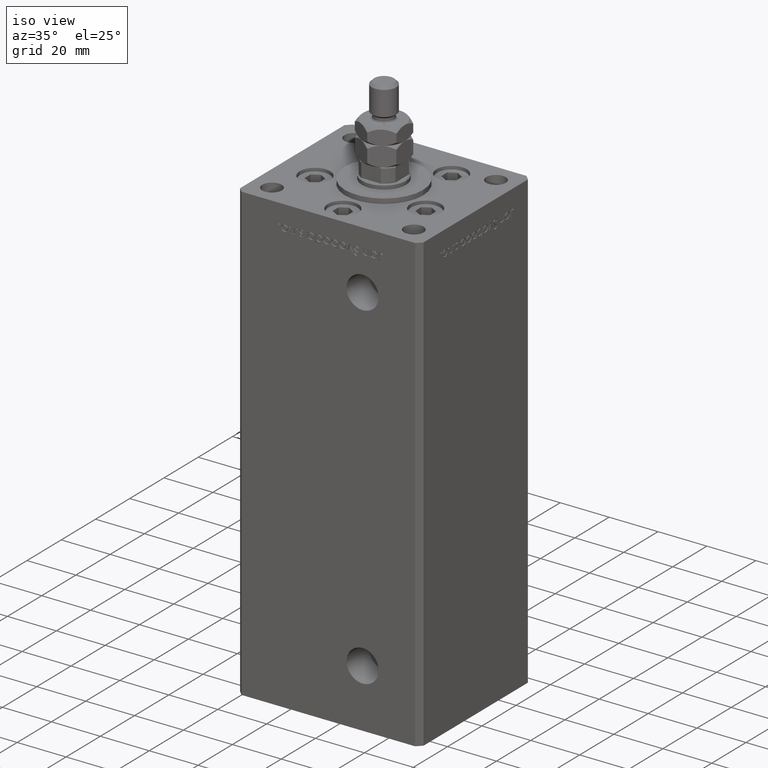
[diagram: clean part render]
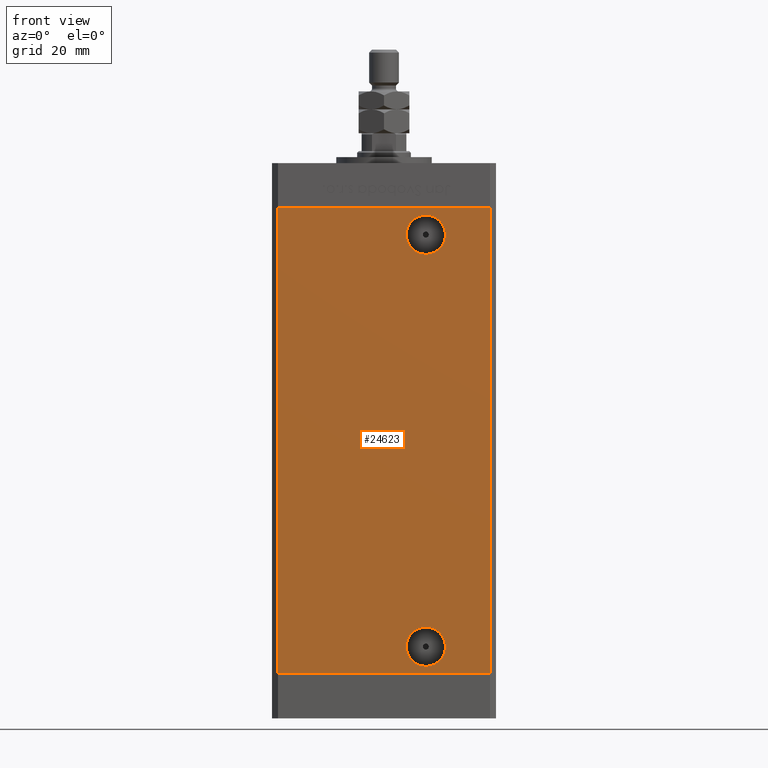
[diagram: tour spotlight — one face highlighted and labeled with its STEP entity id]
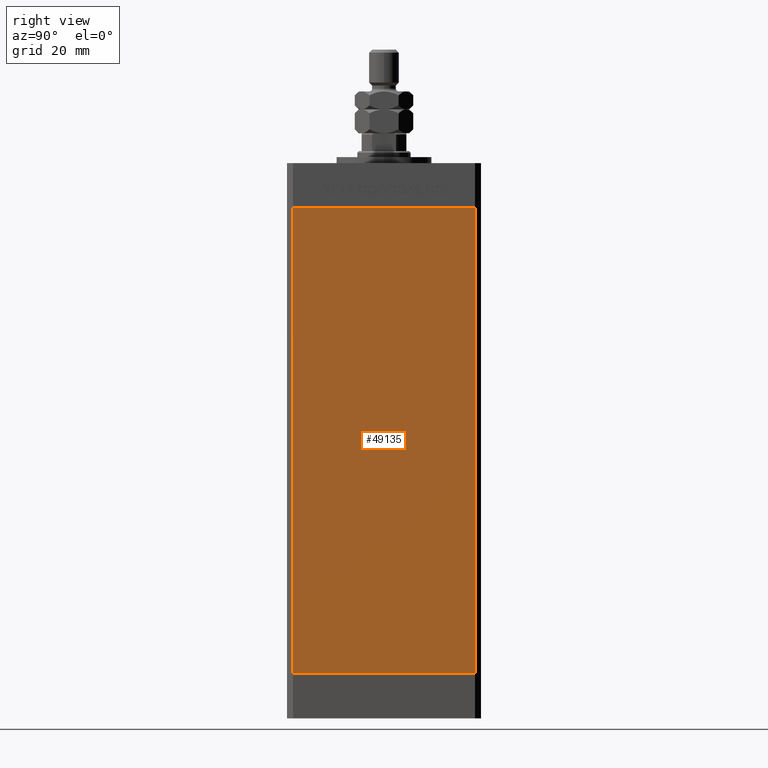
[diagram: tour spotlight — one face highlighted and labeled with its STEP entity id]
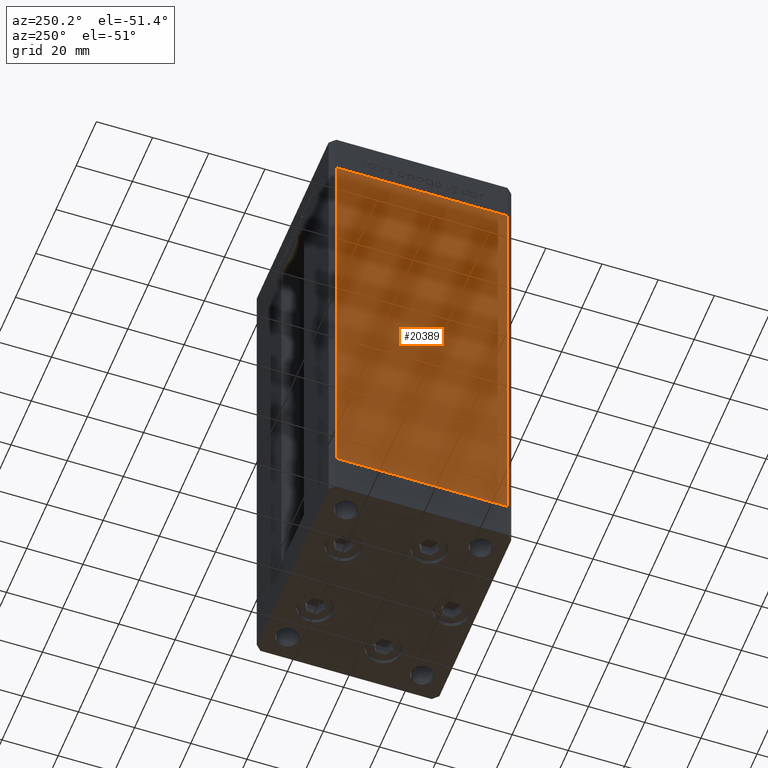
[diagram: tour spotlight — one face highlighted and labeled with its STEP entity id]
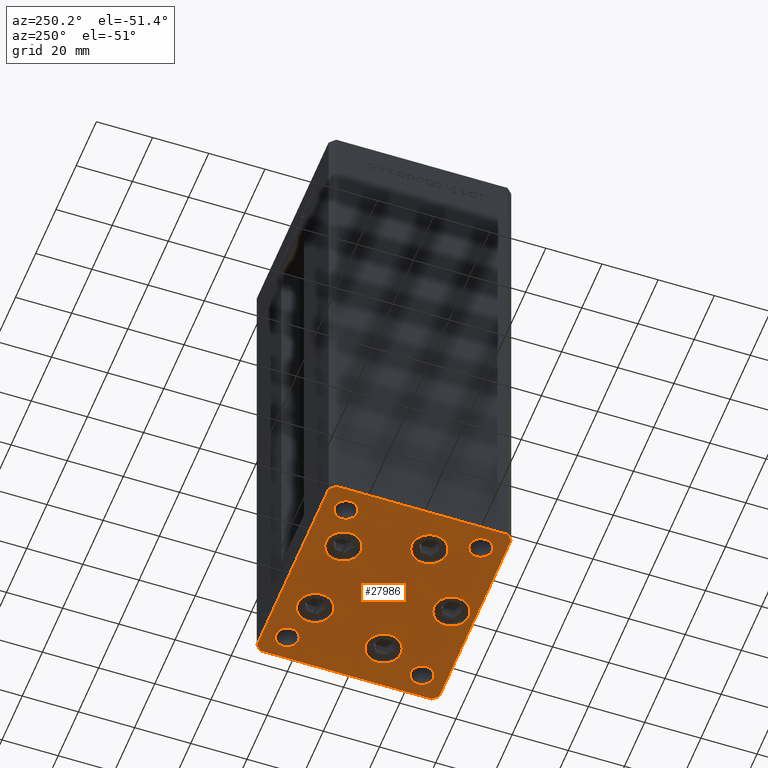
[diagram: tour spotlight — one face highlighted and labeled with its STEP entity id]
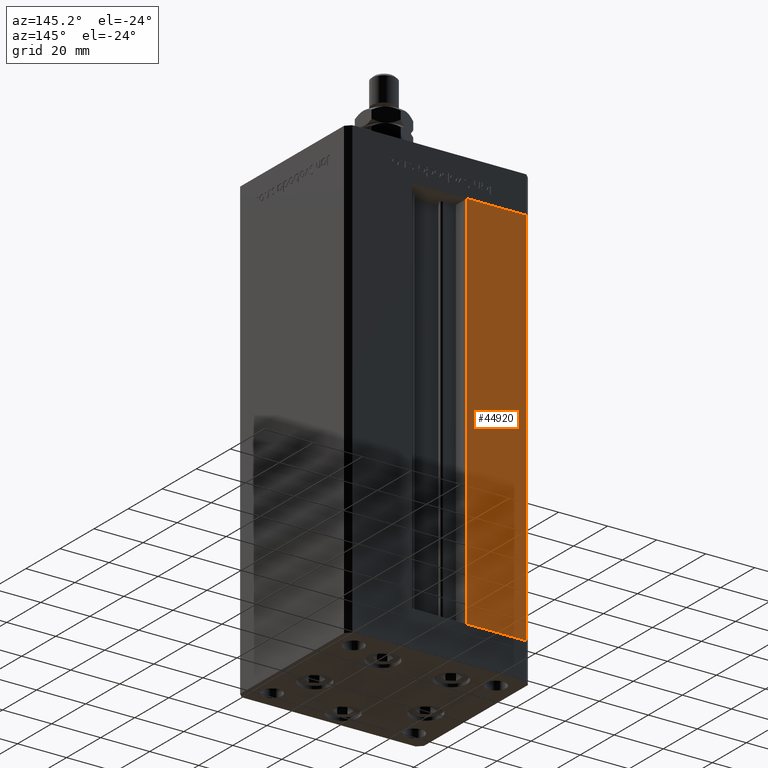
[diagram: tour spotlight — one face highlighted and labeled with its STEP entity id]
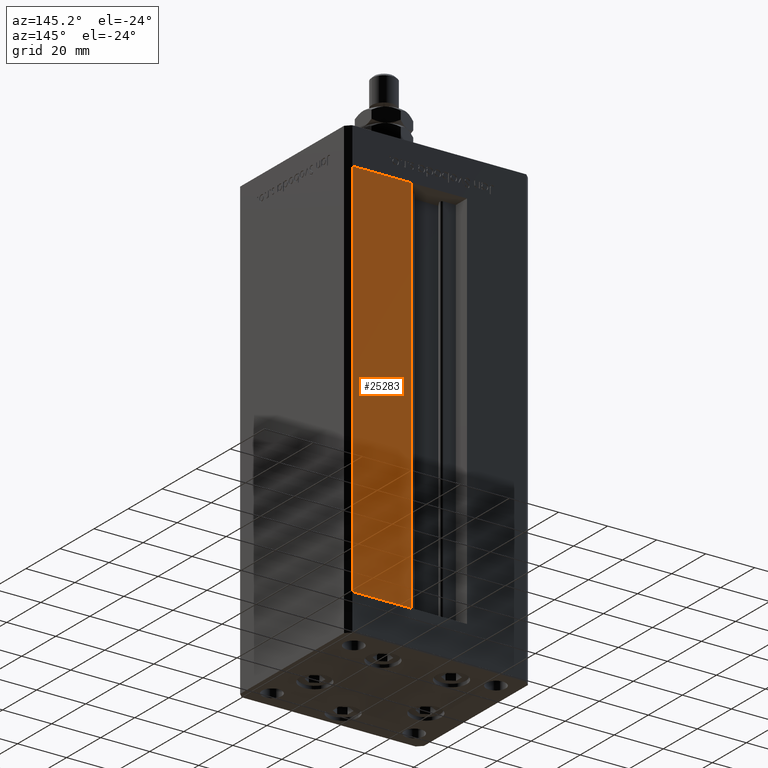
[diagram: tour spotlight — one face highlighted and labeled with its STEP entity id]
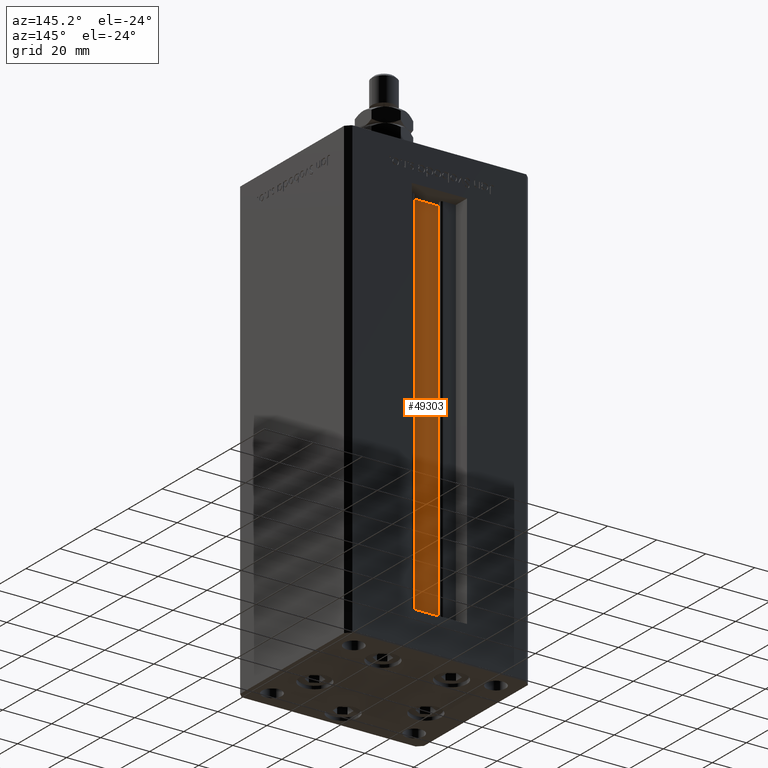
[diagram: tour spotlight — one face highlighted and labeled with its STEP entity id]
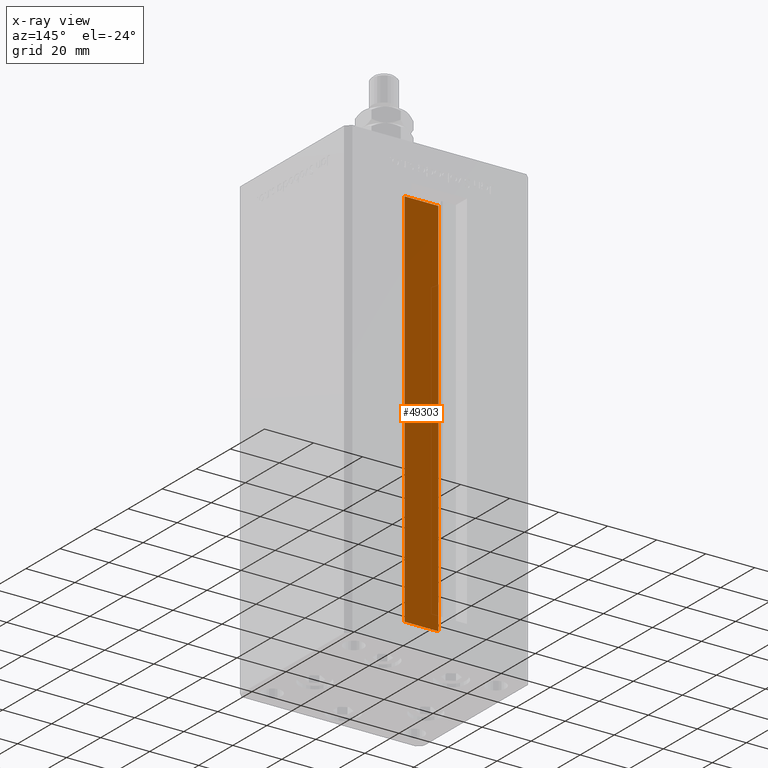
[diagram: x-ray of the same camera — body ghosted, this tour face saturated]
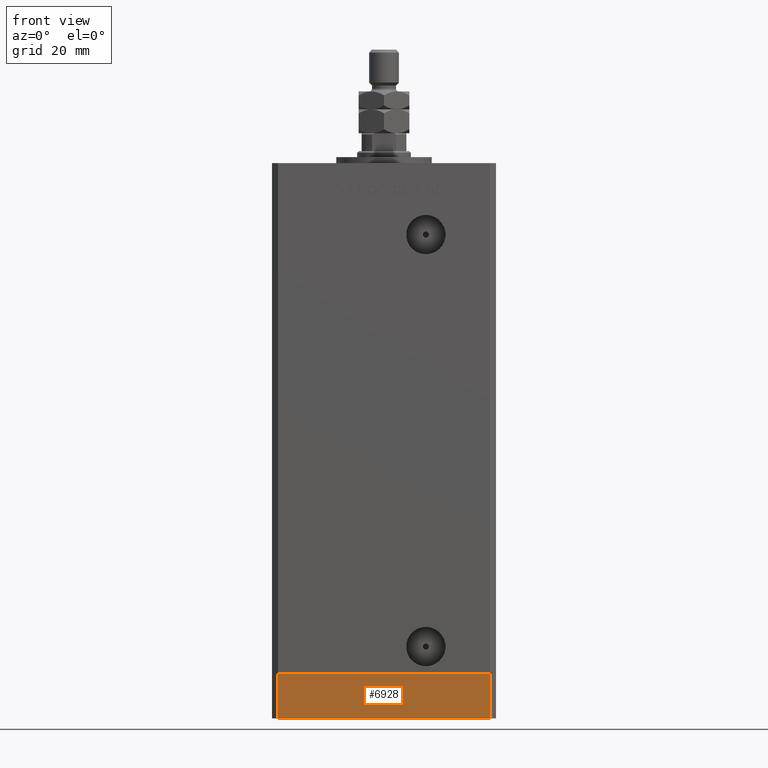
[diagram: tour spotlight — one face highlighted and labeled with its STEP entity id]
A machine part: a face-by-face anatomy tour. The part has 1232 B-rep faces; the first image is the clean iso view, then the 8 largest visible faces are spotlighted one at a time (largest first), each with its STEP entity span.

Face 1 — front view, entity #24623. In plain terms, the highlighted planar face has unit normal (0, 1, 0).
Definition (entity closure, byte-faithful):
#1510 = ORIENTED_EDGE ( 'NONE', *, *, #1729, .T. ) ;
#1599 = CARTESIAN_POINT ( 'NONE',  ( 13.99999999999997513, -32.50000000000000000, 140.4200000000000159 ) ) ;
#1729 = EDGE_CURVE ( 'NONE', #53725, #41376, #13788, .T. ) ;
#2037 = EDGE_CURVE ( 'NONE', #16664, #44804, #14907, .T. ) ;
#2448 = DIRECTION ( 'NONE',  ( 1.000000000000000000, 0.000000000000000000, 0.000000000000000000 ) ) ;
#2516 = CARTESIAN_POINT ( 'NONE',  ( 13.99999999999999112, -32.50000000000000000, 9.000000000000007105 ) ) ;
#4055 = CARTESIAN_POINT ( 'NONE',  ( 13.99999999999997513, -32.50000000000000000, 147.0000000000000284 ) ) ;
#4564 = DIRECTION ( 'NONE',  ( 0.000000000000000000, -1.000000000000000000, 0.000000000000000000 ) ) ;
#5236 = EDGE_LOOP ( 'NONE', ( #14150, #53122, #50766, #28044 ) ) ;
#7395 = FACE_BOUND ( 'NONE', #35644, .T. ) ;
#8204 = DIRECTION ( 'NONE',  ( 0.000000000000000000, -0.000000000000000000, 1.000000000000000000 ) ) ;
#9405 = CARTESIAN_POINT ( 'NONE',  ( 13.99999999999999112, -32.50000000000000000, 2.420000000000009699 ) ) ;
#10301 = VECTOR ( 'NONE', #51677, 1000.000000000000000 ) ;
#11352 = CARTESIAN_POINT ( 'NONE',  ( 35.49999999999999289, -32.50000000000000000, 156.0000000000000000 ) ) ;
#11443 = VERTEX_POINT ( 'NONE', #33886 ) ;
#12280 = CARTESIAN_POINT ( 'NONE',  ( -35.49999999999999289, -32.50000000000000000, 156.0000000000000000 ) ) ;
#13788 = CIRCLE ( 'NONE', #51980, 6.580000000000002736 ) ;
#14150 = ORIENTED_EDGE ( 'NONE', *, *, #33343, .T. ) ;
#14907 = LINE ( 'NONE', #27678, #49432 ) ;
#14947 = VERTEX_POINT ( 'NONE', #40804 ) ;
#15100 = ORIENTED_EDGE ( 'NONE', *, *, #44855, .F. ) ;
#16664 = VERTEX_POINT ( 'NONE', #48062 ) ;
#16863 = CIRCLE ( 'NONE', #53305, 6.580000000000002736 ) ;
#19063 = CARTESIAN_POINT ( 'NONE',  ( -35.49999999999999289, -32.50000000000000000, 0.000000000000000000 ) ) ;
#19911 = PLANE ( 'NONE',  #35920 ) ;
#20131 = CARTESIAN_POINT ( 'NONE',  ( 35.49999999999999289, -32.50000000000000000, 156.0000000000000000 ) ) ;
#21053 = AXIS2_PLACEMENT_3D ( 'NONE', #41822, #4564, #33408 ) ;
#21723 = EDGE_CURVE ( 'NONE', #36996, #14947, #35105, .T. ) ;
#22457 = VECTOR ( 'NONE', #27932, 1000.000000000000000 ) ;
#23214 = DIRECTION ( 'NONE',  ( 0.000000000000000000, 0.000000000000000000, -1.000000000000000000 ) ) ;
#24623 = ADVANCED_FACE ( 'NONE', ( #24793, #48970, #7395 ), #19911, .F. ) ;
#24743 = DIRECTION ( 'NONE',  ( 0.000000000000000000, 0.000000000000000000, -1.000000000000000000 ) ) ;
#24793 = FACE_BOUND ( 'NONE', #41302, .T. ) ;
#27280 = DIRECTION ( 'NONE',  ( 0.000000000000000000, -1.000000000000000000, 0.000000000000000000 ) ) ;
#27678 = CARTESIAN_POINT ( 'NONE',  ( -35.49999999999999289, -32.50000000000000000, 156.0000000000000000 ) ) ;
#27698 = VERTEX_POINT ( 'NONE', #20131 ) ;
#27932 = DIRECTION ( 'NONE',  ( -0.000000000000000000, -0.000000000000000000, -1.000000000000000000 ) ) ;
#28044 = ORIENTED_EDGE ( 'NONE', *, *, #2037, .T. ) ;
#31760 = DIRECTION ( 'NONE',  ( -0.000000000000000000, -0.000000000000000000, -1.000000000000000000 ) ) ;
#33343 = EDGE_CURVE ( 'NONE', #44804, #11443, #51915, .T. ) ;
#33408 = DIRECTION ( 'NONE',  ( 0.000000000000000000, 0.000000000000000000, -1.000000000000000000 ) ) ;
#33886 = CARTESIAN_POINT ( 'NONE',  ( 35.49999999999999289, -32.50000000000000000, 0.000000000000000000 ) ) ;
#35105 = CIRCLE ( 'NONE', #39453, 6.579999999999998295 ) ;
#35353 = CARTESIAN_POINT ( 'NONE',  ( 13.99999999999997513, -32.50000000000000000, 153.5800000000000125 ) ) ;
#35644 = EDGE_LOOP ( 'NONE', ( #52647, #1510 ) ) ;
#35920 = AXIS2_PLACEMENT_3D ( 'NONE', #12280, #48697, #8204 ) ;
#36474 = CARTESIAN_POINT ( 'NONE',  ( 13.99999999999997513, -32.50000000000000000, 147.0000000000000284 ) ) ;
#36832 = EDGE_CURVE ( 'NONE', #27698, #11443, #44514, .T. ) ;
#36996 = VERTEX_POINT ( 'NONE', #9405 ) ;
#37526 = CIRCLE ( 'NONE', #21053, 6.579999999999998295 ) ;
#37990 = EDGE_CURVE ( 'NONE', #16664, #27698, #48148, .T. ) ;
#39453 = AXIS2_PLACEMENT_3D ( 'NONE', #2516, #27280, #23214 ) ;
#40017 = DIRECTION ( 'NONE',  ( -0.000000000000000000, 1.000000000000000000, -0.000000000000000000 ) ) ;
#40804 = CARTESIAN_POINT ( 'NONE',  ( 13.99999999999999112, -32.50000000000000000, 15.58000000000000718 ) ) ;
#41302 = EDGE_LOOP ( 'NONE', ( #41517, #15100 ) ) ;
#41376 = VERTEX_POINT ( 'NONE', #1599 ) ;
#41517 = ORIENTED_EDGE ( 'NONE', *, *, #21723, .F. ) ;
#41822 = CARTESIAN_POINT ( 'NONE',  ( 13.99999999999999112, -32.50000000000000000, 9.000000000000007105 ) ) ;
#42088 = CARTESIAN_POINT ( 'NONE',  ( -35.49999999999999289, -32.50000000000000000, 0.000000000000000000 ) ) ;
#44514 = LINE ( 'NONE', #11352, #22457 ) ;
#44804 = VERTEX_POINT ( 'NONE', #42088 ) ;
#44855 = EDGE_CURVE ( 'NONE', #14947, #36996, #37526, .T. ) ;
#45903 = DIRECTION ( 'NONE',  ( -0.000000000000000000, 1.000000000000000000, -0.000000000000000000 ) ) ;
#47878 = CARTESIAN_POINT ( 'NONE',  ( -35.49999999999999289, -32.50000000000000000, 156.0000000000000000 ) ) ;
#48062 = CARTESIAN_POINT ( 'NONE',  ( -35.49999999999999289, -32.50000000000000000, 156.0000000000000000 ) ) ;
#48148 = LINE ( 'NONE', #47878, #10301 ) ;
#48697 = DIRECTION ( 'NONE',  ( 0.000000000000000000, 1.000000000000000000, 0.000000000000000000 ) ) ;
#48970 = FACE_OUTER_BOUND ( 'NONE', #5236, .T. ) ;
#49432 = VECTOR ( 'NONE', #31760, 1000.000000000000000 ) ;
#49804 = EDGE_CURVE ( 'NONE', #41376, #53725, #16863, .T. ) ;
#50766 = ORIENTED_EDGE ( 'NONE', *, *, #37990, .F. ) ;
#51677 = DIRECTION ( 'NONE',  ( 1.000000000000000000, 0.000000000000000000, 0.000000000000000000 ) ) ;
#51915 = LINE ( 'NONE', #19063, #52686 ) ;
#51980 = AXIS2_PLACEMENT_3D ( 'NONE', #4055, #45903, #24743 ) ;
#52647 = ORIENTED_EDGE ( 'NONE', *, *, #49804, .T. ) ;
#52686 = VECTOR ( 'NONE', #2448, 1000.000000000000000 ) ;
#53028 = DIRECTION ( 'NONE',  ( 0.000000000000000000, 0.000000000000000000, -1.000000000000000000 ) ) ;
#53122 = ORIENTED_EDGE ( 'NONE', *, *, #36832, .F. ) ;
#53305 = AXIS2_PLACEMENT_3D ( 'NONE', #36474, #40017, #53028 ) ;
#53725 = VERTEX_POINT ( 'NONE', #35353 ) ;

Face 2 — right view, entity #49135. In plain terms, the highlighted planar face has unit normal (1, -0, 0).
Definition (entity closure, byte-faithful):
#4048 = VECTOR ( 'NONE', #4164, 1000.000000000000000 ) ;
#4164 = DIRECTION ( 'NONE',  ( -2.275047181608927644E-16, -1.000000000000000000, 0.000000000000000000 ) ) ;
#5883 = VERTEX_POINT ( 'NONE', #37848 ) ;
#6639 = DIRECTION ( 'NONE',  ( -2.275047181608927644E-16, -1.000000000000000000, 0.000000000000000000 ) ) ;
#7255 = CARTESIAN_POINT ( 'NONE',  ( 37.50000000000000711, 30.50000000000000000, 0.000000000000000000 ) ) ;
#8850 = VERTEX_POINT ( 'NONE', #14465 ) ;
#14271 = DIRECTION ( 'NONE',  ( -0.000000000000000000, -0.000000000000000000, -1.000000000000000000 ) ) ;
#14353 = EDGE_LOOP ( 'NONE', ( #24527, #19221, #34821, #48436 ) ) ;
#14465 = CARTESIAN_POINT ( 'NONE',  ( 37.49999999999999289, -30.50000000000000000, 0.000000000000000000 ) ) ;
#14895 = VERTEX_POINT ( 'NONE', #35114 ) ;
#19221 = ORIENTED_EDGE ( 'NONE', *, *, #42950, .F. ) ;
#19765 = PLANE ( 'NONE',  #48923 ) ;
#23568 = DIRECTION ( 'NONE',  ( 2.275047181608927644E-16, 1.000000000000000000, 0.000000000000000000 ) ) ;
#24051 = CARTESIAN_POINT ( 'NONE',  ( 37.50000000000000711, 30.50000000000000000, 156.0000000000000000 ) ) ;
#24113 = FACE_OUTER_BOUND ( 'NONE', #14353, .T. ) ;
#24527 = ORIENTED_EDGE ( 'NONE', *, *, #32217, .F. ) ;
#24559 = EDGE_CURVE ( 'NONE', #14895, #8850, #51151, .T. ) ;
#31064 = DIRECTION ( 'NONE',  ( -0.000000000000000000, -0.000000000000000000, -1.000000000000000000 ) ) ;
#32217 = EDGE_CURVE ( 'NONE', #44054, #8850, #50610, .T. ) ;
#34664 = LINE ( 'NONE', #46871, #49626 ) ;
#34821 = ORIENTED_EDGE ( 'NONE', *, *, #49393, .T. ) ;
#35114 = CARTESIAN_POINT ( 'NONE',  ( 37.49999999999999289, -30.50000000000000000, 156.0000000000000000 ) ) ;
#35906 = VECTOR ( 'NONE', #6639, 1000.000000000000000 ) ;
#36341 = CARTESIAN_POINT ( 'NONE',  ( 37.50000000000000711, 30.50000000000000000, 156.0000000000000000 ) ) ;
#37848 = CARTESIAN_POINT ( 'NONE',  ( 37.50000000000000711, 30.50000000000000000, 156.0000000000000000 ) ) ;
#40684 = DIRECTION ( 'NONE',  ( 1.000000000000000000, -2.275047181608927644E-16, 0.000000000000000000 ) ) ;
#40887 = LINE ( 'NONE', #24051, #35906 ) ;
#42007 = VECTOR ( 'NONE', #31064, 1000.000000000000000 ) ;
#42950 = EDGE_CURVE ( 'NONE', #5883, #44054, #34664, .T. ) ;
#44054 = VERTEX_POINT ( 'NONE', #7255 ) ;
#46537 = CARTESIAN_POINT ( 'NONE',  ( 37.50000000000000711, 30.50000000000000000, 0.000000000000000000 ) ) ;
#46871 = CARTESIAN_POINT ( 'NONE',  ( 37.50000000000000711, 30.50000000000000000, 156.0000000000000000 ) ) ;
#48436 = ORIENTED_EDGE ( 'NONE', *, *, #24559, .T. ) ;
#48923 = AXIS2_PLACEMENT_3D ( 'NONE', #36341, #40684, #23568 ) ;
#49135 = ADVANCED_FACE ( 'NONE', ( #24113 ), #19765, .T. ) ;
#49393 = EDGE_CURVE ( 'NONE', #5883, #14895, #40887, .T. ) ;
#49626 = VECTOR ( 'NONE', #14271, 1000.000000000000000 ) ;
#50610 = LINE ( 'NONE', #46537, #4048 ) ;
#51151 = LINE ( 'NONE', #51960, #42007 ) ;
#51960 = CARTESIAN_POINT ( 'NONE',  ( 37.49999999999999289, -30.50000000000000000, 156.0000000000000000 ) ) ;

Face 3 — auxiliary view, entity #20389. In plain terms, the highlighted planar face has unit normal (1, 0, 0).
Definition (entity closure, byte-faithful):
#673 = EDGE_LOOP ( 'NONE', ( #11956, #24112, #31609, #31254 ) ) ;
#1122 = VERTEX_POINT ( 'NONE', #52642 ) ;
#4049 = EDGE_CURVE ( 'NONE', #1122, #7407, #27144, .T. ) ;
#4878 = EDGE_CURVE ( 'NONE', #17377, #7407, #22810, .T. ) ;
#5812 = CARTESIAN_POINT ( 'NONE',  ( -37.50000000000000711, 30.50000000000000000, 156.0000000000000000 ) ) ;
#6361 = DIRECTION ( 'NONE',  ( 2.275047181608927644E-16, -1.000000000000000000, 0.000000000000000000 ) ) ;
#7021 = DIRECTION ( 'NONE',  ( -0.000000000000000000, -0.000000000000000000, -1.000000000000000000 ) ) ;
#7391 = PLANE ( 'NONE',  #30684 ) ;
#7407 = VERTEX_POINT ( 'NONE', #13731 ) ;
#11259 = CARTESIAN_POINT ( 'NONE',  ( -37.50000000000000711, 30.50000000000000000, 156.0000000000000000 ) ) ;
#11956 = ORIENTED_EDGE ( 'NONE', *, *, #4049, .T. ) ;
#13731 = CARTESIAN_POINT ( 'NONE',  ( -37.49999999999999289, -30.50000000000000000, 0.000000000000000000 ) ) ;
#15559 = CARTESIAN_POINT ( 'NONE',  ( -37.50000000000000711, 30.50000000000000000, 156.0000000000000000 ) ) ;
#17133 = EDGE_CURVE ( 'NONE', #51914, #1122, #21609, .T. ) ;
#17377 = VERTEX_POINT ( 'NONE', #30701 ) ;
#19314 = EDGE_CURVE ( 'NONE', #51914, #17377, #26495, .T. ) ;
#20389 = ADVANCED_FACE ( 'NONE', ( #52756 ), #7391, .F. ) ;
#21609 = LINE ( 'NONE', #5812, #29752 ) ;
#22810 = LINE ( 'NONE', #23351, #52923 ) ;
#23182 = DIRECTION ( 'NONE',  ( -2.275047181608927644E-16, 1.000000000000000000, 0.000000000000000000 ) ) ;
#23351 = CARTESIAN_POINT ( 'NONE',  ( -37.49999999999999289, -30.50000000000000000, 156.0000000000000000 ) ) ;
#24112 = ORIENTED_EDGE ( 'NONE', *, *, #4878, .F. ) ;
#26495 = LINE ( 'NONE', #11259, #32435 ) ;
#27144 = LINE ( 'NONE', #43713, #43389 ) ;
#29752 = VECTOR ( 'NONE', #34101, 1000.000000000000000 ) ;
#30684 = AXIS2_PLACEMENT_3D ( 'NONE', #15559, #35680, #23182 ) ;
#30701 = CARTESIAN_POINT ( 'NONE',  ( -37.49999999999999289, -30.50000000000000000, 156.0000000000000000 ) ) ;
#31254 = ORIENTED_EDGE ( 'NONE', *, *, #17133, .T. ) ;
#31609 = ORIENTED_EDGE ( 'NONE', *, *, #19314, .F. ) ;
#32435 = VECTOR ( 'NONE', #6361, 1000.000000000000000 ) ;
#34101 = DIRECTION ( 'NONE',  ( -0.000000000000000000, -0.000000000000000000, -1.000000000000000000 ) ) ;
#35680 = DIRECTION ( 'NONE',  ( 1.000000000000000000, 2.275047181608927644E-16, -0.000000000000000000 ) ) ;
#39675 = CARTESIAN_POINT ( 'NONE',  ( -37.50000000000000711, 30.50000000000000000, 156.0000000000000000 ) ) ;
#43389 = VECTOR ( 'NONE', #44257, 1000.000000000000000 ) ;
#43713 = CARTESIAN_POINT ( 'NONE',  ( -37.50000000000000711, 30.50000000000000000, 0.000000000000000000 ) ) ;
#44257 = DIRECTION ( 'NONE',  ( 2.275047181608927644E-16, -1.000000000000000000, 0.000000000000000000 ) ) ;
#51914 = VERTEX_POINT ( 'NONE', #39675 ) ;
#52642 = CARTESIAN_POINT ( 'NONE',  ( -37.50000000000000711, 30.50000000000000000, 0.000000000000000000 ) ) ;
#52756 = FACE_OUTER_BOUND ( 'NONE', #673, .T. ) ;
#52923 = VECTOR ( 'NONE', #7021, 1000.000000000000000 ) ;

Face 4 — auxiliary view, entity #27986. In plain terms, the highlighted planar face has unit normal (0, 0, -1).
Definition (entity closure, byte-faithful):
#440 = ORIENTED_EDGE ( 'NONE', *, *, #23301, .F. ) ;
#468 = AXIS2_PLACEMENT_3D ( 'NONE', #30554, #38175, #42785 ) ;
#864 = ORIENTED_EDGE ( 'NONE', *, *, #32479, .T. ) ;
#1115 = CARTESIAN_POINT ( 'NONE',  ( -37.49999999999998579, -30.50000000000001421, 0.000000000000000000 ) ) ;
#1309 = FACE_BOUND ( 'NONE', #18791, .T. ) ;
#1496 = VERTEX_POINT ( 'NONE', #41972 ) ;
#1814 = EDGE_CURVE ( 'NONE', #8580, #21399, #12047, .T. ) ;
#1919 = CIRCLE ( 'NONE', #47914, 4.000000000000003553 ) ;
#2101 = EDGE_LOOP ( 'NONE', ( #50303, #29297 ) ) ;
#2259 = DIRECTION ( 'NONE',  ( -1.000000000000000000, -1.954618001100629052E-16, 0.000000000000000000 ) ) ;
#2615 = EDGE_CURVE ( 'NONE', #20061, #48329, #16127, .T. ) ;
#2897 = AXIS2_PLACEMENT_3D ( 'NONE', #38774, #43108, #5855 ) ;
#3049 = DIRECTION ( 'NONE',  ( 0.000000000000000000, -0.000000000000000000, -1.000000000000000000 ) ) ;
#3282 = ORIENTED_EDGE ( 'NONE', *, *, #51921, .T. ) ;
#3410 = ORIENTED_EDGE ( 'NONE', *, *, #2615, .T. ) ;
#3567 = DIRECTION ( 'NONE',  ( 0.000000000000000000, -0.000000000000000000, -1.000000000000000000 ) ) ;
#4185 = DIRECTION ( 'NONE',  ( 1.000000000000000000, 0.000000000000000000, 0.000000000000000000 ) ) ;
#4200 = AXIS2_PLACEMENT_3D ( 'NONE', #45507, #8287, #4185 ) ;
#4260 = CARTESIAN_POINT ( 'NONE',  ( 22.62741699796951877, -8.000000000000000000, 0.000000000000000000 ) ) ;
#4360 = CARTESIAN_POINT ( 'NONE',  ( -13.99106857963322703, 19.49999999999999645, 0.000000000000000000 ) ) ;
#4916 = DIRECTION ( 'NONE',  ( -0.7071067811865482389, 0.7071067811865469066, 0.000000000000000000 ) ) ;
#4961 = CARTESIAN_POINT ( 'NONE',  ( -35.50000000000002842, 32.49999999999999289, 0.000000000000000000 ) ) ;
#5011 = DIRECTION ( 'NONE',  ( 1.000000000000000000, 0.000000000000000000, 0.000000000000000000 ) ) ;
#5383 = DIRECTION ( 'NONE',  ( 1.000000000000000000, 0.000000000000000000, 0.000000000000000000 ) ) ;
#5530 = CIRCLE ( 'NONE', #35948, 6.250000000000001776 ) ;
#5678 = EDGE_CURVE ( 'NONE', #15409, #53501, #39792, .T. ) ;
#5855 = DIRECTION ( 'NONE',  ( 1.000000000000000000, 0.000000000000000000, 0.000000000000000000 ) ) ;
#6197 = FACE_BOUND ( 'NONE', #49348, .T. ) ;
#6229 = CARTESIAN_POINT ( 'NONE',  ( 37.50000000000001421, -30.50000000000000711, 0.000000000000000000 ) ) ;
#6309 = DIRECTION ( 'NONE',  ( 0.000000000000000000, -0.000000000000000000, -1.000000000000000000 ) ) ;
#6383 = AXIS2_PLACEMENT_3D ( 'NONE', #13188, #9375, #5011 ) ;
#6430 = DIRECTION ( 'NONE',  ( 0.000000000000000000, -0.000000000000000000, -1.000000000000000000 ) ) ;
#7104 = VERTEX_POINT ( 'NONE', #36403 ) ;
#7639 = ORIENTED_EDGE ( 'NONE', *, *, #37605, .T. ) ;
#7865 = CARTESIAN_POINT ( 'NONE',  ( 22.62741699796951877, -8.000000000000000000, 0.000000000000000000 ) ) ;
#8174 = VECTOR ( 'NONE', #44305, 1000.000000000000000 ) ;
#8287 = DIRECTION ( 'NONE',  ( 0.000000000000000000, -0.000000000000000000, -1.000000000000000000 ) ) ;
#8342 = CARTESIAN_POINT ( 'NONE',  ( -37.50000000000001421, 30.49999999999998579, 0.000000000000000000 ) ) ;
#8378 = DIRECTION ( 'NONE',  ( 1.000000000000000000, 0.000000000000000000, 0.000000000000000000 ) ) ;
#8560 = CIRCLE ( 'NONE', #4200, 6.250000000000001776 ) ;
#8580 = VERTEX_POINT ( 'NONE', #52007 ) ;
#8624 = CARTESIAN_POINT ( 'NONE',  ( -33.00000000000000711, 24.00000000000000711, 0.000000000000000000 ) ) ;
#8932 = CIRCLE ( 'NONE', #15890, 6.250000000000000000 ) ;
#9017 = CARTESIAN_POINT ( 'NONE',  ( 37.49999999999992184, 30.50000000000001066, 0.000000000000000000 ) ) ;
#9268 = CARTESIAN_POINT ( 'NONE',  ( -35.49999999999998579, -32.50000000000001421, 0.000000000000000000 ) ) ;
#9375 = DIRECTION ( 'NONE',  ( -0.000000000000000000, 0.000000000000000000, 1.000000000000000000 ) ) ;
#9703 = VECTOR ( 'NONE', #42672, 1000.000000000000000 ) ;
#9839 = CIRCLE ( 'NONE', #19405, 4.000000000000003553 ) ;
#10191 = VECTOR ( 'NONE', #4916, 999.9999999999998863 ) ;
#10367 = CARTESIAN_POINT ( 'NONE',  ( 29.00000000000001066, 24.00000000000000711, 0.000000000000000000 ) ) ;
#10553 = CIRCLE ( 'NONE', #27897, 4.000000000000003553 ) ;
#10626 = ORIENTED_EDGE ( 'NONE', *, *, #51039, .T. ) ;
#10856 = CARTESIAN_POINT ( 'NONE',  ( -13.99106857963322703, 19.49999999999999645, 0.000000000000000000 ) ) ;
#11754 = AXIS2_PLACEMENT_3D ( 'NONE', #43176, #22532, #5383 ) ;
#12047 = CIRCLE ( 'NONE', #25936, 3.999999999999996447 ) ;
#12612 = CARTESIAN_POINT ( 'NONE',  ( 29.00000000000001066, -23.99999999999999289, 0.000000000000000000 ) ) ;
#12706 = EDGE_CURVE ( 'NONE', #13454, #36291, #49570, .T. ) ;
#13101 = EDGE_CURVE ( 'NONE', #25298, #15850, #10553, .T. ) ;
#13188 = CARTESIAN_POINT ( 'NONE',  ( 29.00000000000001066, 24.00000000000000711, 0.000000000000000000 ) ) ;
#13349 = LINE ( 'NONE', #9268, #48431 ) ;
#13353 = CIRCLE ( 'NONE', #2897, 6.250000000000000000 ) ;
#13362 = LINE ( 'NONE', #9017, #10191 ) ;
#13451 = AXIS2_PLACEMENT_3D ( 'NONE', #40477, #20355, #44011 ) ;
#13454 = VERTEX_POINT ( 'NONE', #17052 ) ;
#13494 = EDGE_LOOP ( 'NONE', ( #24807, #7639 ) ) ;
#13518 = VERTEX_POINT ( 'NONE', #44193 ) ;
#13718 = ORIENTED_EDGE ( 'NONE', *, *, #20586, .T. ) ;
#14101 = FACE_OUTER_BOUND ( 'NONE', #51314, .T. ) ;
#14284 = CARTESIAN_POINT ( 'NONE',  ( 25.00000000000000711, 24.00000000000000711, 0.000000000000000000 ) ) ;
#14638 = FACE_BOUND ( 'NONE', #13494, .T. ) ;
#15191 = AXIS2_PLACEMENT_3D ( 'NONE', #10856, #27438, #40480 ) ;
#15320 = VERTEX_POINT ( 'NONE', #33846 ) ;
#15409 = VERTEX_POINT ( 'NONE', #34919 ) ;
#15764 = LINE ( 'NONE', #48373, #8174 ) ;
#15850 = VERTEX_POINT ( 'NONE', #45408 ) ;
#15890 = AXIS2_PLACEMENT_3D ( 'NONE', #4360, #29381, #44893 ) ;
#15907 = CARTESIAN_POINT ( 'NONE',  ( -35.49999999999998579, -32.50000000000001421, 0.000000000000000000 ) ) ;
#16127 = LINE ( 'NONE', #20998, #42498 ) ;
#16660 = DIRECTION ( 'NONE',  ( 0.7071067811865487940, 0.7071067811865463515, 0.000000000000000000 ) ) ;
#16851 = CARTESIAN_POINT ( 'NONE',  ( -6.249999999999997335, -24.00000000000000000, 0.000000000000000000 ) ) ;
#17052 = CARTESIAN_POINT ( 'NONE',  ( 16.37741699796951877, -8.000000000000000000, 0.000000000000000000 ) ) ;
#17571 = EDGE_CURVE ( 'NONE', #19857, #34176, #9839, .T. ) ;
#17608 = ORIENTED_EDGE ( 'NONE', *, *, #48997, .T. ) ;
#18531 = DIRECTION ( 'NONE',  ( -0.000000000000000000, 0.000000000000000000, 1.000000000000000000 ) ) ;
#18568 = AXIS2_PLACEMENT_3D ( 'NONE', #22229, #6430, #18954 ) ;
#18601 = CARTESIAN_POINT ( 'NONE',  ( -37.50000000000001421, 30.49999999999998579, 0.000000000000000000 ) ) ;
#18791 = EDGE_LOOP ( 'NONE', ( #13718, #31822 ) ) ;
#18813 = AXIS2_PLACEMENT_3D ( 'NONE', #37039, #3049, #19387 ) ;
#18839 = DIRECTION ( 'NONE',  ( 1.000000000000000000, 0.000000000000000000, 0.000000000000000000 ) ) ;
#18943 = EDGE_LOOP ( 'NONE', ( #47551, #440 ) ) ;
#18954 = DIRECTION ( 'NONE',  ( 1.000000000000000000, 0.000000000000000000, 0.000000000000000000 ) ) ;
#19226 = EDGE_CURVE ( 'NONE', #15850, #25298, #37636, .T. ) ;
#19337 = DIRECTION ( 'NONE',  ( 1.000000000000000000, 0.000000000000000000, 0.000000000000000000 ) ) ;
#19387 = DIRECTION ( 'NONE',  ( 1.000000000000000000, 0.000000000000000000, 0.000000000000000000 ) ) ;
#19405 = AXIS2_PLACEMENT_3D ( 'NONE', #25231, #28771, #8378 ) ;
#19470 = EDGE_CURVE ( 'NONE', #22656, #37272, #42470, .T. ) ;
#19525 = CARTESIAN_POINT ( 'NONE',  ( 37.50000000000001421, -30.50000000000000711, 0.000000000000000000 ) ) ;
#19857 = VERTEX_POINT ( 'NONE', #40753 ) ;
#20061 = VERTEX_POINT ( 'NONE', #22771 ) ;
#20355 = DIRECTION ( 'NONE',  ( -0.000000000000000000, 0.000000000000000000, 1.000000000000000000 ) ) ;
#20382 = DIRECTION ( 'NONE',  ( 1.000000000000000000, 0.000000000000000000, 0.000000000000000000 ) ) ;
#20586 = EDGE_CURVE ( 'NONE', #26973, #1496, #39421, .T. ) ;
#20998 = CARTESIAN_POINT ( 'NONE',  ( 35.50000000000000711, -32.50000000000000711, 0.000000000000000000 ) ) ;
#21274 = CIRCLE ( 'NONE', #15191, 6.250000000000000000 ) ;
#21399 = VERTEX_POINT ( 'NONE', #8624 ) ;
#21622 = ORIENTED_EDGE ( 'NONE', *, *, #50507, .T. ) ;
#21720 = FACE_BOUND ( 'NONE', #38475, .T. ) ;
#21808 = ORIENTED_EDGE ( 'NONE', *, *, #19470, .T. ) ;
#22229 = CARTESIAN_POINT ( 'NONE',  ( -29.00000000000001066, -23.99999999999999289, 0.000000000000000000 ) ) ;
#22532 = DIRECTION ( 'NONE',  ( -0.000000000000000000, 0.000000000000000000, 1.000000000000000000 ) ) ;
#22656 = VERTEX_POINT ( 'NONE', #1115 ) ;
#22771 = CARTESIAN_POINT ( 'NONE',  ( 35.50000000000000711, -32.50000000000000711, 0.000000000000000000 ) ) ;
#23301 = EDGE_CURVE ( 'NONE', #21399, #8580, #31569, .T. ) ;
#24229 = CARTESIAN_POINT ( 'NONE',  ( 20.24106857963322526, 19.50000000000000000, 0.000000000000000000 ) ) ;
#24256 = CARTESIAN_POINT ( 'NONE',  ( 2.939152317953647500E-15, -24.00000000000000000, 0.000000000000000000 ) ) ;
#24797 = EDGE_LOOP ( 'NONE', ( #49740, #3282 ) ) ;
#24807 = ORIENTED_EDGE ( 'NONE', *, *, #29444, .T. ) ;
#24921 = EDGE_CURVE ( 'NONE', #53501, #29446, #15764, .T. ) ;
#25123 = DIRECTION ( 'NONE',  ( 0.000000000000000000, -0.000000000000000000, -1.000000000000000000 ) ) ;
#25212 = DIRECTION ( 'NONE',  ( 1.000000000000000000, 0.000000000000000000, 0.000000000000000000 ) ) ;
#25231 = CARTESIAN_POINT ( 'NONE',  ( 29.00000000000001066, -23.99999999999999289, 0.000000000000000000 ) ) ;
#25298 = VERTEX_POINT ( 'NONE', #14284 ) ;
#25321 = VERTEX_POINT ( 'NONE', #46622 ) ;
#25528 = AXIS2_PLACEMENT_3D ( 'NONE', #24256, #3567, #53573 ) ;
#25854 = DIRECTION ( 'NONE',  ( 1.000000000000000000, 9.773090005503140331E-17, 0.000000000000000000 ) ) ;
#25936 = AXIS2_PLACEMENT_3D ( 'NONE', #42105, #49444, #28811 ) ;
#26060 = FACE_BOUND ( 'NONE', #24797, .T. ) ;
#26873 = FACE_BOUND ( 'NONE', #47730, .T. ) ;
#26905 = LINE ( 'NONE', #6229, #9703 ) ;
#26973 = VERTEX_POINT ( 'NONE', #16851 ) ;
#27368 = ORIENTED_EDGE ( 'NONE', *, *, #37306, .T. ) ;
#27438 = DIRECTION ( 'NONE',  ( 0.000000000000000000, -0.000000000000000000, -1.000000000000000000 ) ) ;
#27897 = AXIS2_PLACEMENT_3D ( 'NONE', #10367, #18531, #19337 ) ;
#27986 = ADVANCED_FACE ( 'NONE', ( #26060, #14638, #51309, #1309, #26873, #42639, #6197, #34490, #14101, #21720 ), #47242, .T. ) ;
#28467 = DIRECTION ( 'NONE',  ( 4.550094363217855288E-16, -1.000000000000000000, 0.000000000000000000 ) ) ;
#28771 = DIRECTION ( 'NONE',  ( 0.000000000000000000, -0.000000000000000000, -1.000000000000000000 ) ) ;
#28811 = DIRECTION ( 'NONE',  ( 1.000000000000000000, 0.000000000000000000, 0.000000000000000000 ) ) ;
#28878 = CARTESIAN_POINT ( 'NONE',  ( 13.99106857963322348, 19.50000000000000000, 0.000000000000000000 ) ) ;
#29297 = ORIENTED_EDGE ( 'NONE', *, *, #13101, .F. ) ;
#29381 = DIRECTION ( 'NONE',  ( 0.000000000000000000, -0.000000000000000000, -1.000000000000000000 ) ) ;
#29444 = EDGE_CURVE ( 'NONE', #34102, #41135, #52576, .T. ) ;
#29446 = VERTEX_POINT ( 'NONE', #18601 ) ;
#29756 = CARTESIAN_POINT ( 'NONE',  ( 7.741068579633223479, 19.50000000000000000, 0.000000000000000000 ) ) ;
#29813 = CARTESIAN_POINT ( 'NONE',  ( -28.87741699796952233, -8.000000000000005329, 0.000000000000000000 ) ) ;
#30469 = EDGE_LOOP ( 'NONE', ( #49236, #10626 ) ) ;
#30554 = CARTESIAN_POINT ( 'NONE',  ( 13.99106857963322348, 19.50000000000000000, 0.000000000000000000 ) ) ;
#30770 = AXIS2_PLACEMENT_3D ( 'NONE', #7865, #37219, #20382 ) ;
#31176 = VECTOR ( 'NONE', #28467, 1000.000000000000000 ) ;
#31418 = ORIENTED_EDGE ( 'NONE', *, *, #40083, .T. ) ;
#31569 = CIRCLE ( 'NONE', #13451, 3.999999999999996447 ) ;
#31611 = ORIENTED_EDGE ( 'NONE', *, *, #44549, .T. ) ;
#31665 = ORIENTED_EDGE ( 'NONE', *, *, #39393, .T. ) ;
#31822 = ORIENTED_EDGE ( 'NONE', *, *, #48505, .T. ) ;
#32479 = EDGE_CURVE ( 'NONE', #25321, #7104, #47423, .T. ) ;
#32660 = ORIENTED_EDGE ( 'NONE', *, *, #17571, .T. ) ;
#33141 = VERTEX_POINT ( 'NONE', #29813 ) ;
#33316 = EDGE_CURVE ( 'NONE', #15320, #15409, #13362, .T. ) ;
#33846 = CARTESIAN_POINT ( 'NONE',  ( 37.49999999999992184, 30.50000000000001066, 0.000000000000000000 ) ) ;
#34102 = VERTEX_POINT ( 'NONE', #29756 ) ;
#34176 = VERTEX_POINT ( 'NONE', #41462 ) ;
#34490 = FACE_BOUND ( 'NONE', #18943, .T. ) ;
#34919 = CARTESIAN_POINT ( 'NONE',  ( 35.49999999999992184, 32.50000000000000711, 0.000000000000000000 ) ) ;
#35139 = CARTESIAN_POINT ( 'NONE',  ( -22.62741699796951877, -8.000000000000005329, 0.000000000000000000 ) ) ;
#35948 = AXIS2_PLACEMENT_3D ( 'NONE', #35139, #6309, #18839 ) ;
#36291 = VERTEX_POINT ( 'NONE', #46094 ) ;
#36403 = CARTESIAN_POINT ( 'NONE',  ( -25.00000000000001066, -23.99999999999999289, 0.000000000000000000 ) ) ;
#37039 = CARTESIAN_POINT ( 'NONE',  ( -29.00000000000001066, -23.99999999999999289, 0.000000000000000000 ) ) ;
#37219 = DIRECTION ( 'NONE',  ( 0.000000000000000000, -0.000000000000000000, -1.000000000000000000 ) ) ;
#37222 = VERTEX_POINT ( 'NONE', #44981 ) ;
#37272 = VERTEX_POINT ( 'NONE', #15907 ) ;
#37306 = EDGE_CURVE ( 'NONE', #33141, #49340, #8560, .T. ) ;
#37605 = EDGE_CURVE ( 'NONE', #41135, #34102, #49328, .T. ) ;
#37636 = CIRCLE ( 'NONE', #6383, 4.000000000000003553 ) ;
#38175 = DIRECTION ( 'NONE',  ( 0.000000000000000000, -0.000000000000000000, -1.000000000000000000 ) ) ;
#38241 = DIRECTION ( 'NONE',  ( 0.000000000000000000, -0.000000000000000000, -1.000000000000000000 ) ) ;
#38475 = EDGE_LOOP ( 'NONE', ( #17608, #864 ) ) ;
#38668 = DIRECTION ( 'NONE',  ( 0.7071067811865474617, -0.7071067811865474617, 0.000000000000000000 ) ) ;
#38774 = CARTESIAN_POINT ( 'NONE',  ( 2.939152317953647500E-15, -24.00000000000000000, 0.000000000000000000 ) ) ;
#39098 = VECTOR ( 'NONE', #2259, 1000.000000000000000 ) ;
#39381 = VECTOR ( 'NONE', #38668, 1000.000000000000114 ) ;
#39393 = EDGE_CURVE ( 'NONE', #29446, #22656, #49638, .T. ) ;
#39421 = CIRCLE ( 'NONE', #25528, 6.250000000000000000 ) ;
#39469 = CIRCLE ( 'NONE', #30770, 6.250000000000001776 ) ;
#39792 = LINE ( 'NONE', #44671, #39098 ) ;
#40083 = EDGE_CURVE ( 'NONE', #37272, #20061, #13349, .T. ) ;
#40477 = CARTESIAN_POINT ( 'NONE',  ( -29.00000000000001066, 24.00000000000000711, 0.000000000000000000 ) ) ;
#40480 = DIRECTION ( 'NONE',  ( 1.000000000000000000, 0.000000000000000000, 0.000000000000000000 ) ) ;
#40753 = CARTESIAN_POINT ( 'NONE',  ( 25.00000000000000711, -23.99999999999999289, 0.000000000000000000 ) ) ;
#41135 = VERTEX_POINT ( 'NONE', #24229 ) ;
#41146 = CIRCLE ( 'NONE', #18568, 4.000000000000000000 ) ;
#41462 = CARTESIAN_POINT ( 'NONE',  ( 33.00000000000001421, -23.99999999999999289, 0.000000000000000000 ) ) ;
#41692 = DIRECTION ( 'NONE',  ( 1.000000000000000000, 0.000000000000000000, 0.000000000000000000 ) ) ;
#41972 = CARTESIAN_POINT ( 'NONE',  ( 6.250000000000002665, -24.00000000000000000, 0.000000000000000000 ) ) ;
#42105 = CARTESIAN_POINT ( 'NONE',  ( -29.00000000000001066, 24.00000000000000711, 0.000000000000000000 ) ) ;
#42470 = LINE ( 'NONE', #47061, #39381 ) ;
#42498 = VECTOR ( 'NONE', #16660, 1000.000000000000000 ) ;
#42639 = FACE_BOUND ( 'NONE', #2101, .T. ) ;
#42672 = DIRECTION ( 'NONE',  ( -1.478780668045802821E-15, 1.000000000000000000, 0.000000000000000000 ) ) ;
#42785 = DIRECTION ( 'NONE',  ( 1.000000000000000000, 0.000000000000000000, 0.000000000000000000 ) ) ;
#42825 = ORIENTED_EDGE ( 'NONE', *, *, #5678, .T. ) ;
#43108 = DIRECTION ( 'NONE',  ( 0.000000000000000000, -0.000000000000000000, -1.000000000000000000 ) ) ;
#43176 = CARTESIAN_POINT ( 'NONE',  ( 0.000000000000000000, 0.000000000000000000, 0.000000000000000000 ) ) ;
#43618 = EDGE_CURVE ( 'NONE', #48329, #15320, #26905, .T. ) ;
#44011 = DIRECTION ( 'NONE',  ( 1.000000000000000000, 0.000000000000000000, 0.000000000000000000 ) ) ;
#44193 = CARTESIAN_POINT ( 'NONE',  ( -7.741068579633227031, 19.49999999999999645, 0.000000000000000000 ) ) ;
#44305 = DIRECTION ( 'NONE',  ( -0.7071067811865426878, -0.7071067811865524577, 0.000000000000000000 ) ) ;
#44549 = EDGE_CURVE ( 'NONE', #34176, #19857, #1919, .T. ) ;
#44671 = CARTESIAN_POINT ( 'NONE',  ( 35.49999999999992184, 32.50000000000000711, 0.000000000000000000 ) ) ;
#44681 = ORIENTED_EDGE ( 'NONE', *, *, #33316, .T. ) ;
#44893 = DIRECTION ( 'NONE',  ( 1.000000000000000000, 0.000000000000000000, 0.000000000000000000 ) ) ;
#44981 = CARTESIAN_POINT ( 'NONE',  ( -20.24106857963322881, 19.49999999999999645, 0.000000000000000000 ) ) ;
#45408 = CARTESIAN_POINT ( 'NONE',  ( 33.00000000000001421, 24.00000000000000711, 0.000000000000000000 ) ) ;
#45441 = DIRECTION ( 'NONE',  ( 0.000000000000000000, -0.000000000000000000, -1.000000000000000000 ) ) ;
#45507 = CARTESIAN_POINT ( 'NONE',  ( -22.62741699796951877, -8.000000000000005329, 0.000000000000000000 ) ) ;
#45709 = DIRECTION ( 'NONE',  ( 1.000000000000000000, 0.000000000000000000, 0.000000000000000000 ) ) ;
#46094 = CARTESIAN_POINT ( 'NONE',  ( 28.87741699796952233, -8.000000000000000000, 0.000000000000000000 ) ) ;
#46290 = EDGE_CURVE ( 'NONE', #37222, #13518, #8932, .T. ) ;
#46622 = CARTESIAN_POINT ( 'NONE',  ( -33.00000000000000711, -23.99999999999999289, 0.000000000000000000 ) ) ;
#47061 = CARTESIAN_POINT ( 'NONE',  ( -37.49999999999998579, -30.50000000000001421, 0.000000000000000000 ) ) ;
#47242 = PLANE ( 'NONE',  #11754 ) ;
#47423 = CIRCLE ( 'NONE', #18813, 4.000000000000000000 ) ;
#47551 = ORIENTED_EDGE ( 'NONE', *, *, #1814, .F. ) ;
#47730 = EDGE_LOOP ( 'NONE', ( #27368, #21622 ) ) ;
#47914 = AXIS2_PLACEMENT_3D ( 'NONE', #12612, #25123, #41692 ) ;
#48329 = VERTEX_POINT ( 'NONE', #19525 ) ;
#48373 = CARTESIAN_POINT ( 'NONE',  ( -35.50000000000002842, 32.49999999999999289, 0.000000000000000000 ) ) ;
#48431 = VECTOR ( 'NONE', #25854, 1000.000000000000000 ) ;
#48473 = AXIS2_PLACEMENT_3D ( 'NONE', #28878, #45441, #45709 ) ;
#48505 = EDGE_CURVE ( 'NONE', #1496, #26973, #13353, .T. ) ;
#48638 = ORIENTED_EDGE ( 'NONE', *, *, #24921, .T. ) ;
#48997 = EDGE_CURVE ( 'NONE', #7104, #25321, #41146, .T. ) ;
#49236 = ORIENTED_EDGE ( 'NONE', *, *, #12706, .T. ) ;
#49328 = CIRCLE ( 'NONE', #48473, 6.250000000000000000 ) ;
#49340 = VERTEX_POINT ( 'NONE', #52823 ) ;
#49348 = EDGE_LOOP ( 'NONE', ( #31611, #32660 ) ) ;
#49444 = DIRECTION ( 'NONE',  ( -0.000000000000000000, 0.000000000000000000, 1.000000000000000000 ) ) ;
#49570 = CIRCLE ( 'NONE', #49608, 6.250000000000001776 ) ;
#49608 = AXIS2_PLACEMENT_3D ( 'NONE', #4260, #38241, #25212 ) ;
#49638 = LINE ( 'NONE', #8342, #31176 ) ;
#49740 = ORIENTED_EDGE ( 'NONE', *, *, #46290, .T. ) ;
#50303 = ORIENTED_EDGE ( 'NONE', *, *, #19226, .F. ) ;
#50507 = EDGE_CURVE ( 'NONE', #49340, #33141, #5530, .T. ) ;
#50606 = ORIENTED_EDGE ( 'NONE', *, *, #43618, .T. ) ;
#51039 = EDGE_CURVE ( 'NONE', #36291, #13454, #39469, .T. ) ;
#51309 = FACE_BOUND ( 'NONE', #30469, .T. ) ;
#51314 = EDGE_LOOP ( 'NONE', ( #21808, #31418, #3410, #50606, #44681, #42825, #48638, #31665 ) ) ;
#51921 = EDGE_CURVE ( 'NONE', #13518, #37222, #21274, .T. ) ;
#52007 = CARTESIAN_POINT ( 'NONE',  ( -25.00000000000001421, 24.00000000000000711, 0.000000000000000000 ) ) ;
#52576 = CIRCLE ( 'NONE', #468, 6.250000000000000000 ) ;
#52823 = CARTESIAN_POINT ( 'NONE',  ( -16.37741699796951877, -8.000000000000005329, 0.000000000000000000 ) ) ;
#53501 = VERTEX_POINT ( 'NONE', #4961 ) ;
#53573 = DIRECTION ( 'NONE',  ( 1.000000000000000000, 0.000000000000000000, 0.000000000000000000 ) ) ;

Face 5 — auxiliary view, entity #44920. In plain terms, the highlighted planar face has unit normal (0, -1, 0).
Definition (entity closure, byte-faithful):
#310 = DIRECTION ( 'NONE',  ( -1.000000000000000000, 0.000000000000000000, 0.000000000000000000 ) ) ;
#4323 = VECTOR ( 'NONE', #26428, 1000.000000000000000 ) ;
#4477 = VECTOR ( 'NONE', #32169, 1000.000000000000000 ) ;
#5548 = VECTOR ( 'NONE', #15099, 1000.000000000000000 ) ;
#6929 = CARTESIAN_POINT ( 'NONE',  ( -11.25000000000000178, 32.49999999999999289, 156.0000000000000000 ) ) ;
#7203 = LINE ( 'NONE', #6929, #5548 ) ;
#7429 = LINE ( 'NONE', #28625, #4477 ) ;
#8889 = EDGE_CURVE ( 'NONE', #9346, #30388, #18553, .T. ) ;
#9346 = VERTEX_POINT ( 'NONE', #38748 ) ;
#13782 = EDGE_CURVE ( 'NONE', #42493, #49042, #7429, .T. ) ;
#15099 = DIRECTION ( 'NONE',  ( 1.000000000000000000, 0.000000000000000000, 0.000000000000000000 ) ) ;
#15945 = CARTESIAN_POINT ( 'NONE',  ( -35.50000000000000000, 32.49999999999999289, 0.000000000000000000 ) ) ;
#16920 = EDGE_LOOP ( 'NONE', ( #28166, #40618, #43012, #41932 ) ) ;
#17910 = FACE_OUTER_BOUND ( 'NONE', #16920, .T. ) ;
#18553 = LINE ( 'NONE', #51940, #4323 ) ;
#23050 = VECTOR ( 'NONE', #310, 1000.000000000000000 ) ;
#25081 = CARTESIAN_POINT ( 'NONE',  ( -11.25000000000000178, 32.49999999999999289, 0.000000000000000000 ) ) ;
#25358 = EDGE_CURVE ( 'NONE', #42493, #30388, #7203, .T. ) ;
#26428 = DIRECTION ( 'NONE',  ( -0.000000000000000000, -0.000000000000000000, 1.000000000000000000 ) ) ;
#27992 = AXIS2_PLACEMENT_3D ( 'NONE', #51562, #39090, #34198 ) ;
#28166 = ORIENTED_EDGE ( 'NONE', *, *, #25358, .T. ) ;
#28625 = CARTESIAN_POINT ( 'NONE',  ( -35.50000000000000000, 32.49999999999999289, 156.0000000000000000 ) ) ;
#28719 = EDGE_CURVE ( 'NONE', #9346, #49042, #45718, .T. ) ;
#30388 = VERTEX_POINT ( 'NONE', #40535 ) ;
#32169 = DIRECTION ( 'NONE',  ( -0.000000000000000000, -0.000000000000000000, -1.000000000000000000 ) ) ;
#34198 = DIRECTION ( 'NONE',  ( 0.000000000000000000, -0.000000000000000000, -1.000000000000000000 ) ) ;
#35013 = PLANE ( 'NONE',  #27992 ) ;
#38748 = CARTESIAN_POINT ( 'NONE',  ( -11.25000000000000178, 32.49999999999999289, 0.000000000000000000 ) ) ;
#39090 = DIRECTION ( 'NONE',  ( 0.000000000000000000, -1.000000000000000000, 0.000000000000000000 ) ) ;
#40535 = CARTESIAN_POINT ( 'NONE',  ( -11.25000000000000178, 32.49999999999999289, 156.0000000000000000 ) ) ;
#40618 = ORIENTED_EDGE ( 'NONE', *, *, #8889, .F. ) ;
#41932 = ORIENTED_EDGE ( 'NONE', *, *, #13782, .F. ) ;
#42493 = VERTEX_POINT ( 'NONE', #48880 ) ;
#43012 = ORIENTED_EDGE ( 'NONE', *, *, #28719, .T. ) ;
#44920 = ADVANCED_FACE ( 'NONE', ( #17910 ), #35013, .F. ) ;
#45718 = LINE ( 'NONE', #25081, #23050 ) ;
#48880 = CARTESIAN_POINT ( 'NONE',  ( -35.50000000000000000, 32.49999999999999289, 156.0000000000000000 ) ) ;
#49042 = VERTEX_POINT ( 'NONE', #15945 ) ;
#51562 = CARTESIAN_POINT ( 'NONE',  ( -11.25000000000000178, 32.49999999999999289, 156.0000000000000000 ) ) ;
#51940 = CARTESIAN_POINT ( 'NONE',  ( -11.25000000000000178, 32.49999999999999289, 0.000000000000000000 ) ) ;

Face 6 — auxiliary view, entity #25283. In plain terms, the highlighted planar face has unit normal (0, -1, 0).
Definition (entity closure, byte-faithful):
#573 = CARTESIAN_POINT ( 'NONE',  ( -11.25000000000000178, 32.49999999999999289, 0.000000000000000000 ) ) ;
#2217 = ORIENTED_EDGE ( 'NONE', *, *, #7294, .T. ) ;
#3345 = CARTESIAN_POINT ( 'NONE',  ( 35.50000000000000000, 32.49999999999999289, 156.0000000000000000 ) ) ;
#4308 = EDGE_CURVE ( 'NONE', #28270, #14749, #42780, .T. ) ;
#6609 = VECTOR ( 'NONE', #20096, 1000.000000000000000 ) ;
#7213 = CARTESIAN_POINT ( 'NONE',  ( 11.25000000000000178, 32.49999999999999289, 0.000000000000000000 ) ) ;
#7294 = EDGE_CURVE ( 'NONE', #11541, #28270, #33065, .T. ) ;
#7576 = LINE ( 'NONE', #45346, #6609 ) ;
#9544 = DIRECTION ( 'NONE',  ( -1.000000000000000000, 0.000000000000000000, 0.000000000000000000 ) ) ;
#11541 = VERTEX_POINT ( 'NONE', #7213 ) ;
#13483 = FACE_OUTER_BOUND ( 'NONE', #47033, .T. ) ;
#14749 = VERTEX_POINT ( 'NONE', #3345 ) ;
#16279 = VERTEX_POINT ( 'NONE', #50059 ) ;
#18065 = DIRECTION ( 'NONE',  ( 1.000000000000000000, 0.000000000000000000, 0.000000000000000000 ) ) ;
#19073 = ORIENTED_EDGE ( 'NONE', *, *, #28792, .T. ) ;
#20096 = DIRECTION ( 'NONE',  ( -0.000000000000000000, -0.000000000000000000, -1.000000000000000000 ) ) ;
#22452 = DIRECTION ( 'NONE',  ( 0.000000000000000000, -1.000000000000000000, 0.000000000000000000 ) ) ;
#24383 = DIRECTION ( 'NONE',  ( -0.000000000000000000, -0.000000000000000000, 1.000000000000000000 ) ) ;
#25283 = ADVANCED_FACE ( 'NONE', ( #13483 ), #30064, .F. ) ;
#25765 = ORIENTED_EDGE ( 'NONE', *, *, #31349, .T. ) ;
#25867 = LINE ( 'NONE', #573, #48200 ) ;
#28270 = VERTEX_POINT ( 'NONE', #42575 ) ;
#28792 = EDGE_CURVE ( 'NONE', #16279, #11541, #25867, .T. ) ;
#30064 = PLANE ( 'NONE',  #41169 ) ;
#30820 = CARTESIAN_POINT ( 'NONE',  ( -11.25000000000000178, 32.49999999999999289, 156.0000000000000000 ) ) ;
#31349 = EDGE_CURVE ( 'NONE', #14749, #16279, #7576, .T. ) ;
#33065 = LINE ( 'NONE', #52892, #33921 ) ;
#33921 = VECTOR ( 'NONE', #24383, 1000.000000000000000 ) ;
#35605 = VECTOR ( 'NONE', #18065, 1000.000000000000000 ) ;
#41169 = AXIS2_PLACEMENT_3D ( 'NONE', #46884, #22452, #47151 ) ;
#42090 = ORIENTED_EDGE ( 'NONE', *, *, #4308, .T. ) ;
#42575 = CARTESIAN_POINT ( 'NONE',  ( 11.24999999999999467, 32.49999999999999289, 156.0000000000000000 ) ) ;
#42780 = LINE ( 'NONE', #30820, #35605 ) ;
#45346 = CARTESIAN_POINT ( 'NONE',  ( 35.50000000000000000, 32.49999999999999289, 156.0000000000000000 ) ) ;
#46884 = CARTESIAN_POINT ( 'NONE',  ( -11.25000000000000178, 32.49999999999999289, 156.0000000000000000 ) ) ;
#47033 = EDGE_LOOP ( 'NONE', ( #19073, #2217, #42090, #25765 ) ) ;
#47151 = DIRECTION ( 'NONE',  ( 0.000000000000000000, -0.000000000000000000, -1.000000000000000000 ) ) ;
#48200 = VECTOR ( 'NONE', #9544, 1000.000000000000000 ) ;
#50059 = CARTESIAN_POINT ( 'NONE',  ( 35.50000000000000000, 32.49999999999999289, 0.000000000000000000 ) ) ;
#52892 = CARTESIAN_POINT ( 'NONE',  ( 11.25000000000000178, 32.49999999999999289, 0.000000000000000000 ) ) ;

Face 7 — auxiliary view, entity #49303. An x-ray twin of the same camera follows (body ghosted, this face saturated) — the face is partly hidden behind the body. In plain terms, the highlighted planar face has unit normal (0, -1, 0).
Definition (entity closure, byte-faithful):
#316 = EDGE_CURVE ( 'NONE', #22822, #24264, #40294, .T. ) ;
#326 = DIRECTION ( 'NONE',  ( -0.000000000000000000, -0.000000000000000000, 1.000000000000000000 ) ) ;
#2010 = DIRECTION ( 'NONE',  ( 0.000000000000000000, 0.000000000000000000, -1.000000000000000000 ) ) ;
#3732 = CARTESIAN_POINT ( 'NONE',  ( 6.876153656360466826, 21.99999999999986855, 156.0000000000000000 ) ) ;
#5280 = PLANE ( 'NONE',  #31556 ) ;
#5464 = LINE ( 'NONE', #25620, #7362 ) ;
#6419 = EDGE_CURVE ( 'NONE', #24264, #21237, #50664, .T. ) ;
#6550 = EDGE_CURVE ( 'NONE', #21237, #15702, #15606, .T. ) ;
#7362 = VECTOR ( 'NONE', #326, 1000.000000000000000 ) ;
#7887 = VECTOR ( 'NONE', #53082, 1000.000000000000000 ) ;
#15606 = LINE ( 'NONE', #52812, #7887 ) ;
#15702 = VERTEX_POINT ( 'NONE', #23975 ) ;
#17554 = EDGE_LOOP ( 'NONE', ( #44901, #39016, #22959, #44752 ) ) ;
#17826 = DIRECTION ( 'NONE',  ( 0.000000000000000000, -1.000000000000000000, -0.000000000000000000 ) ) ;
#18090 = CARTESIAN_POINT ( 'NONE',  ( 6.876153656360466826, 21.99999999999986855, 0.000000000000000000 ) ) ;
#19370 = CARTESIAN_POINT ( 'NONE',  ( 6.876153656360466826, 21.99999999999986855, 0.000000000000000000 ) ) ;
#21237 = VERTEX_POINT ( 'NONE', #3732 ) ;
#22652 = EDGE_CURVE ( 'NONE', #22822, #15702, #5464, .T. ) ;
#22822 = VERTEX_POINT ( 'NONE', #43524 ) ;
#22959 = ORIENTED_EDGE ( 'NONE', *, *, #22652, .T. ) ;
#23975 = CARTESIAN_POINT ( 'NONE',  ( -6.876153656360466826, 21.99999999999986855, 156.0000000000000000 ) ) ;
#24264 = VERTEX_POINT ( 'NONE', #43154 ) ;
#25620 = CARTESIAN_POINT ( 'NONE',  ( -6.876153656360466826, 21.99999999999986855, 0.000000000000000000 ) ) ;
#31141 = VECTOR ( 'NONE', #31868, 1000.000000000000000 ) ;
#31556 = AXIS2_PLACEMENT_3D ( 'NONE', #18090, #17826, #2010 ) ;
#31868 = DIRECTION ( 'NONE',  ( 1.000000000000000000, -0.000000000000000000, -0.000000000000000000 ) ) ;
#38733 = CARTESIAN_POINT ( 'NONE',  ( 6.876153656360466826, 21.99999999999986855, 0.000000000000000000 ) ) ;
#39016 = ORIENTED_EDGE ( 'NONE', *, *, #316, .F. ) ;
#40294 = LINE ( 'NONE', #19370, #31141 ) ;
#43065 = DIRECTION ( 'NONE',  ( -0.000000000000000000, -0.000000000000000000, 1.000000000000000000 ) ) ;
#43154 = CARTESIAN_POINT ( 'NONE',  ( 6.876153656360466826, 21.99999999999986855, 0.000000000000000000 ) ) ;
#43524 = CARTESIAN_POINT ( 'NONE',  ( -6.876153656360466826, 21.99999999999986855, 0.000000000000000000 ) ) ;
#44752 = ORIENTED_EDGE ( 'NONE', *, *, #6550, .F. ) ;
#44901 = ORIENTED_EDGE ( 'NONE', *, *, #6419, .F. ) ;
#46059 = VECTOR ( 'NONE', #43065, 1000.000000000000000 ) ;
#49303 = ADVANCED_FACE ( 'NONE', ( #52014 ), #5280, .F. ) ;
#50664 = LINE ( 'NONE', #38733, #46059 ) ;
#52014 = FACE_OUTER_BOUND ( 'NONE', #17554, .T. ) ;
#52812 = CARTESIAN_POINT ( 'NONE',  ( 0.000000000000000000, 21.99999999999986855, 156.0000000000000000 ) ) ;
#53082 = DIRECTION ( 'NONE',  ( -1.000000000000000000, 0.000000000000000000, 0.000000000000000000 ) ) ;

Face 8 — front view, entity #6928. In plain terms, the highlighted planar face has unit normal (-0, -1, -0).
Definition (entity closure, byte-faithful):
#1294 = CARTESIAN_POINT ( 'NONE',  ( 35.50000000000000711, -32.50000000000000711, -15.00000000000000000 ) ) ;
#3816 = PLANE ( 'NONE',  #52133 ) ;
#5938 = VECTOR ( 'NONE', #32216, 1000.000000000000000 ) ;
#6928 = ADVANCED_FACE ( 'NONE', ( #41602 ), #3816, .T. ) ;
#7077 = VECTOR ( 'NONE', #42535, 1000.000000000000000 ) ;
#7280 = VECTOR ( 'NONE', #39635, 1000.000000000000000 ) ;
#9268 = CARTESIAN_POINT ( 'NONE',  ( -35.49999999999998579, -32.50000000000001421, 0.000000000000000000 ) ) ;
#12710 = ORIENTED_EDGE ( 'NONE', *, *, #25034, .T. ) ;
#13349 = LINE ( 'NONE', #9268, #48431 ) ;
#14051 = ORIENTED_EDGE ( 'NONE', *, *, #40083, .F. ) ;
#15907 = CARTESIAN_POINT ( 'NONE',  ( -35.49999999999998579, -32.50000000000001421, 0.000000000000000000 ) ) ;
#19726 = CARTESIAN_POINT ( 'NONE',  ( -35.49999999999998579, -32.50000000000001421, -15.00000000000000000 ) ) ;
#20061 = VERTEX_POINT ( 'NONE', #22771 ) ;
#20423 = DIRECTION ( 'NONE',  ( 9.773090005503140331E-17, -1.000000000000000000, 0.000000000000000000 ) ) ;
#22771 = CARTESIAN_POINT ( 'NONE',  ( 35.50000000000000711, -32.50000000000000711, 0.000000000000000000 ) ) ;
#23405 = ORIENTED_EDGE ( 'NONE', *, *, #37223, .T. ) ;
#24499 = CARTESIAN_POINT ( 'NONE',  ( -35.49999999999998579, -32.50000000000001421, -15.00000000000000000 ) ) ;
#24500 = CARTESIAN_POINT ( 'NONE',  ( -35.49999999999998579, -32.50000000000001421, -15.00000000000000000 ) ) ;
#25034 = EDGE_CURVE ( 'NONE', #33488, #20061, #43163, .T. ) ;
#25854 = DIRECTION ( 'NONE',  ( 1.000000000000000000, 9.773090005503140331E-17, 0.000000000000000000 ) ) ;
#32216 = DIRECTION ( 'NONE',  ( 1.000000000000000000, 9.773090005503140331E-17, 0.000000000000000000 ) ) ;
#32486 = LINE ( 'NONE', #19726, #5938 ) ;
#33488 = VERTEX_POINT ( 'NONE', #40789 ) ;
#34111 = LINE ( 'NONE', #50669, #7077 ) ;
#37223 = EDGE_CURVE ( 'NONE', #51758, #33488, #32486, .T. ) ;
#37272 = VERTEX_POINT ( 'NONE', #15907 ) ;
#39635 = DIRECTION ( 'NONE',  ( 0.000000000000000000, 0.000000000000000000, 1.000000000000000000 ) ) ;
#40083 = EDGE_CURVE ( 'NONE', #37272, #20061, #13349, .T. ) ;
#40789 = CARTESIAN_POINT ( 'NONE',  ( 35.50000000000000711, -32.50000000000000711, -15.00000000000000000 ) ) ;
#41602 = FACE_OUTER_BOUND ( 'NONE', #46020, .T. ) ;
#42091 = EDGE_CURVE ( 'NONE', #51758, #37272, #34111, .T. ) ;
#42535 = DIRECTION ( 'NONE',  ( 0.000000000000000000, 0.000000000000000000, 1.000000000000000000 ) ) ;
#43163 = LINE ( 'NONE', #1294, #7280 ) ;
#45932 = DIRECTION ( 'NONE',  ( 1.000000000000000000, 9.773090005503140331E-17, 0.000000000000000000 ) ) ;
#46020 = EDGE_LOOP ( 'NONE', ( #14051, #48101, #23405, #12710 ) ) ;
#48101 = ORIENTED_EDGE ( 'NONE', *, *, #42091, .F. ) ;
#48431 = VECTOR ( 'NONE', #25854, 1000.000000000000000 ) ;
#50669 = CARTESIAN_POINT ( 'NONE',  ( -35.49999999999998579, -32.50000000000001421, -15.00000000000000000 ) ) ;
#51758 = VERTEX_POINT ( 'NONE', #24499 ) ;
#52133 = AXIS2_PLACEMENT_3D ( 'NONE', #24500, #20423, #45932 ) ;